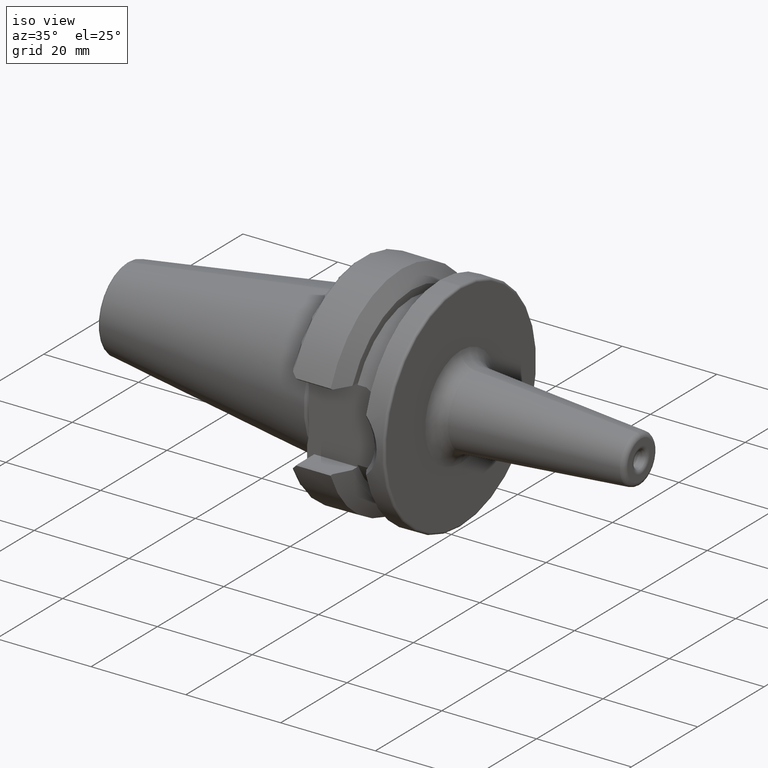
[diagram: clean part render]
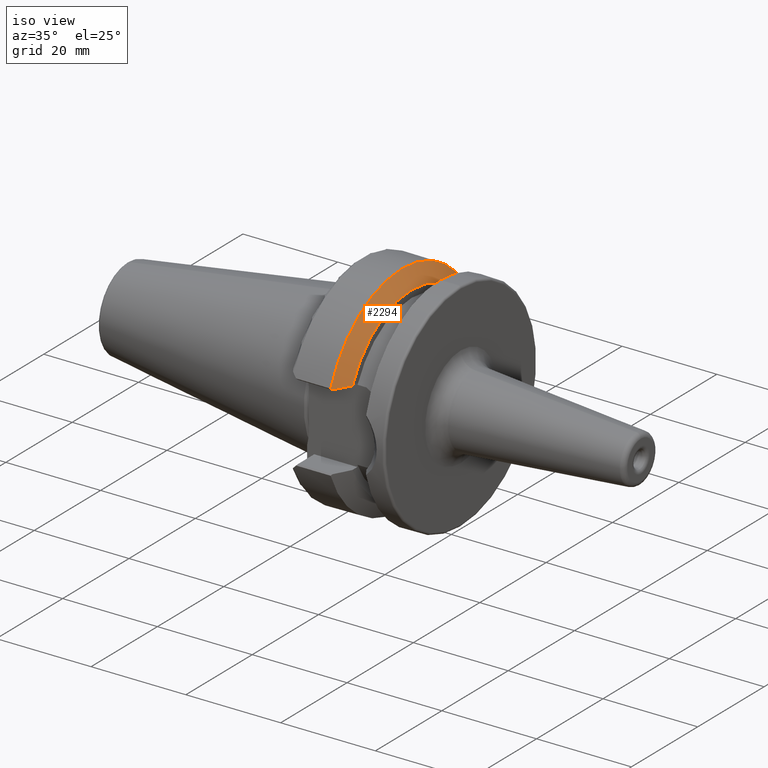
[diagram: same view with one face highlighted and labeled with its STEP entity id]
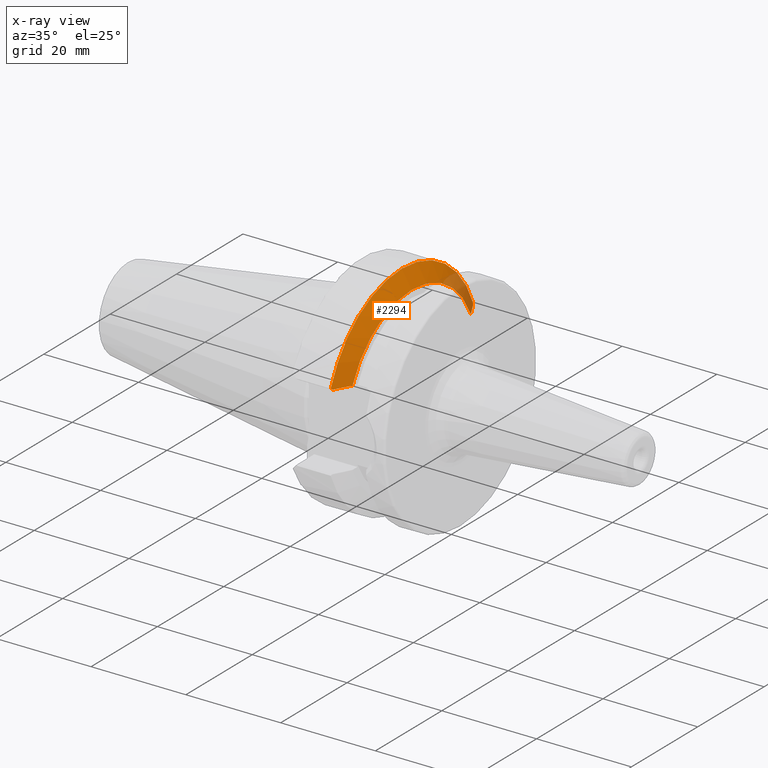
[diagram: x-ray of the same camera — body ghosted, the highlighted face saturated]
A machine part, iso view. The second image highlights one B-rep face of the part: STEP entity #2294.
The next image is the same camera in x-ray: the body ghosted, the highlighted face saturated — about 10% of this face is hidden behind the body in this view.
In plain terms, the highlighted conical surface has half-angle 59.26 deg.
Its self-contained STEP definition (entity closure, byte-faithful):
#608=CARTESIAN_POINT('',(9.57005905E0,-2.145012604989E1,8.300126049886E0));
#609=CARTESIAN_POINT('',(9.602303495718E0,-2.140820905320E1,8.258209053199E0));
#610=CARTESIAN_POINT('',(9.666571397551E0,-2.132460442370E1,8.174604423703E0));
#611=CARTESIAN_POINT('',(9.730396991237E0,-2.124145839527E1,8.091458395269E0));
#612=CARTESIAN_POINT('',(9.762199129276E0,-2.12E1,8.05E0));
#614=CARTESIAN_POINT('',(9.57005905E0,0.E0,0.E0));
#615=DIRECTION('',(-1.E0,0.E0,0.E0));
#616=DIRECTION('',(0.E0,-9.326141760820E-1,3.608750456472E-1));
#617=AXIS2_PLACEMENT_3D('',#614,#615,#616);
#619=CARTESIAN_POINT('',(9.762199129276E0,2.12E1,8.05E0));
#620=CARTESIAN_POINT('',(9.730398491867E0,2.124145643899E1,8.091456438994E0));
#621=CARTESIAN_POINT('',(9.666574402113E0,2.132460051242E1,8.174600512419E0));
#622=CARTESIAN_POINT('',(9.602304999609E0,2.140820709818E1,8.258207098177E0));
#623=CARTESIAN_POINT('',(9.57005905E0,2.145012604989E1,8.300126049886E0));
#625=CARTESIAN_POINT('',(9.762199129276E0,2.12E1,8.05E0));
#626=CARTESIAN_POINT('',(9.968201452491E0,2.082947433347E1,8.05E0));
#627=CARTESIAN_POINT('',(1.037219914798E1,2.010037669426E1,8.05E0));
#628=CARTESIAN_POINT('',(1.076009746175E1,1.939513856180E1,8.05E0));
#629=CARTESIAN_POINT('',(1.095E1,1.904847253213E1,8.05E0));
#631=CARTESIAN_POINT('',(1.16300584E1,1.781345690078E1,8.021223134447E0));
#632=CARTESIAN_POINT('',(1.155521469186E1,1.794861994451E1,8.027568562265E0));
#633=CARTESIAN_POINT('',(1.140504531391E1,1.822035027805E1,8.038190554591E0));
#634=CARTESIAN_POINT('',(1.117835524434E1,1.863206477640E1,8.047832212651E0));
#635=CARTESIAN_POINT('',(1.102627553749E1,1.890923196175E1,8.05E0));
#636=CARTESIAN_POINT('',(1.095E1,1.904847253213E1,8.05E0));
#638=CARTESIAN_POINT('',(1.16300584E1,0.E0,0.E0));
#639=DIRECTION('',(1.E0,0.E0,0.E0));
#640=DIRECTION('',(0.E0,9.118224929466E-1,4.105846336100E-1));
#641=AXIS2_PLACEMENT_3D('',#638,#639,#640);
#643=CARTESIAN_POINT('',(1.095E1,-1.904847253213E1,8.05E0));
#644=CARTESIAN_POINT('',(1.102624460365E1,-1.890928843130E1,8.05E0));
#645=CARTESIAN_POINT('',(1.117828291108E1,-1.863219644870E1,8.047833970424E0));
#646=CARTESIAN_POINT('',(1.140497277891E1,-1.822048171110E1,8.038194949636E0));
#647=CARTESIAN_POINT('',(1.155518353999E1,-1.794867620283E1,8.027571203394E0));
#648=CARTESIAN_POINT('',(1.16300584E1,-1.781345690078E1,8.021223134447E0));
#650=CARTESIAN_POINT('',(1.095E1,-1.904847253213E1,8.05E0));
#651=CARTESIAN_POINT('',(1.076030647648E1,-1.939475700656E1,8.05E0));
#652=CARTESIAN_POINT('',(1.037261976418E1,-2.009961499632E1,8.05E0));
#653=CARTESIAN_POINT('',(9.968412854652E0,-2.082909409539E1,8.05E0));
#654=CARTESIAN_POINT('',(9.762199129276E0,-2.12E1,8.05E0));
#1270=VERTEX_POINT('',#631);
#1271=VERTEX_POINT('',#636);
#1310=VERTEX_POINT('',#619);
#1311=VERTEX_POINT('',#623);
#1324=VERTEX_POINT('',#643);
#1325=VERTEX_POINT('',#648);
#1371=CARTESIAN_POINT('',(9.57005905E0,-2.145012604989E1,8.300126049886E0));
#1373=VERTEX_POINT('',#1371);
#1375=VERTEX_POINT('',#612);
#2272=CARTESIAN_POINT('',(1.060005872500E1,0.E0,0.E0));
#2273=DIRECTION('',(-1.E0,0.E0,0.E0));
#2274=DIRECTION('',(0.E0,0.E0,-1.E0));
#2275=AXIS2_PLACEMENT_3D('',#2272,#2273,#2274);
#2276=CONICAL_SURFACE('',#2275,2.126805082051E1,5.925981855358E1);
#2278=ORIENTED_EDGE('',*,*,#2277,.F.);
#2279=ORIENTED_EDGE('',*,*,#2175,.T.);
#2281=ORIENTED_EDGE('',*,*,#2280,.F.);
#2283=ORIENTED_EDGE('',*,*,#2282,.T.);
#2285=ORIENTED_EDGE('',*,*,#2284,.F.);
#2287=ORIENTED_EDGE('',*,*,#2286,.T.);
#2289=ORIENTED_EDGE('',*,*,#2288,.F.);
#2291=ORIENTED_EDGE('',*,*,#2290,.T.);
#2292=EDGE_LOOP('',(#2278,#2279,#2281,#2283,#2285,#2287,#2289,#2291));
#2293=FACE_OUTER_BOUND('',#2292,.F.);
#2294=ADVANCED_FACE('',(#2293),#2276,.T.);
#613=B_SPLINE_CURVE_WITH_KNOTS('',3,(#608,#609,#610,#611,#612),.UNSPECIFIED.,
.F.,.F.,(4,1,4),(0.E0,5.E-1,1.E0),.UNSPECIFIED.);
#618=CIRCLE('',#617,2.3E1);
#624=B_SPLINE_CURVE_WITH_KNOTS('',3,(#619,#620,#621,#622,#623),.UNSPECIFIED.,
.F.,.F.,(4,1,4),(0.E0,5.E-1,1.E0),.UNSPECIFIED.);
#630=B_SPLINE_CURVE_WITH_KNOTS('',3,(#625,#626,#627,#628,#629),.UNSPECIFIED.,
.F.,.F.,(4,1,4),(0.E0,5.E-1,1.E0),.UNSPECIFIED.);
#637=B_SPLINE_CURVE_WITH_KNOTS('',3,(#631,#632,#633,#634,#635,#636),
.UNSPECIFIED.,.F.,.F.,(4,1,1,4),(0.E0,3.333333333333E-1,6.666666666667E-1,1.E0),
.UNSPECIFIED.);
#642=CIRCLE('',#641,1.953610164102E1);
#649=B_SPLINE_CURVE_WITH_KNOTS('',3,(#643,#644,#645,#646,#647,#648),
.UNSPECIFIED.,.F.,.F.,(4,1,1,4),(0.E0,3.333333333333E-1,6.666666666667E-1,1.E0),
.UNSPECIFIED.);
#655=B_SPLINE_CURVE_WITH_KNOTS('',3,(#650,#651,#652,#653,#654),.UNSPECIFIED.,
.F.,.F.,(4,1,4),(0.E0,5.E-1,1.E0),.UNSPECIFIED.);
#2175=EDGE_CURVE('',#1373,#1311,#618,.T.);
#2277=EDGE_CURVE('',#1373,#1375,#613,.T.);
#2280=EDGE_CURVE('',#1310,#1311,#624,.T.);
#2282=EDGE_CURVE('',#1310,#1271,#630,.T.);
#2284=EDGE_CURVE('',#1270,#1271,#637,.T.);
#2286=EDGE_CURVE('',#1270,#1325,#642,.T.);
#2288=EDGE_CURVE('',#1324,#1325,#649,.T.);
#2290=EDGE_CURVE('',#1324,#1375,#655,.T.);